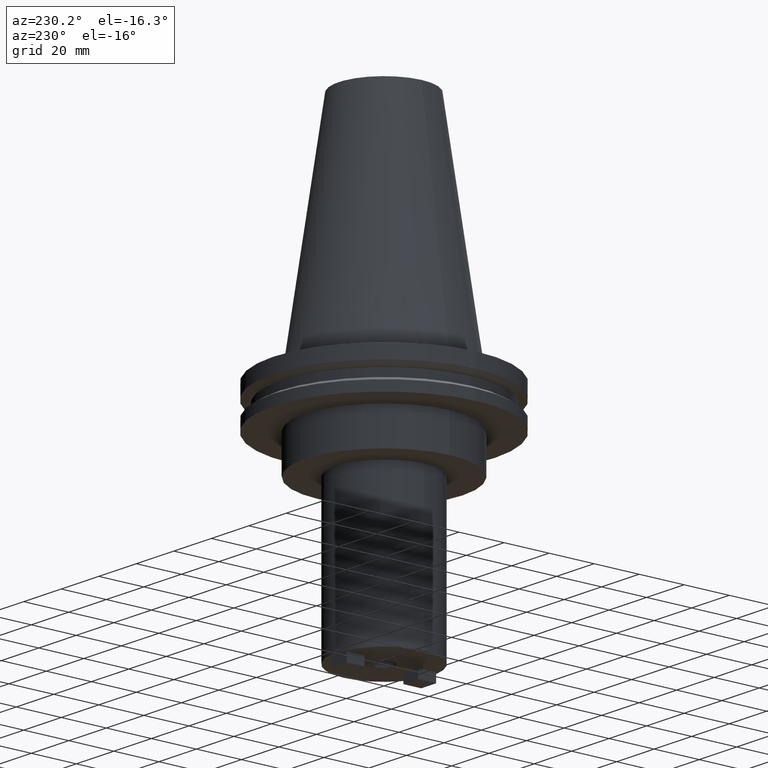
[diagram: clean part render]
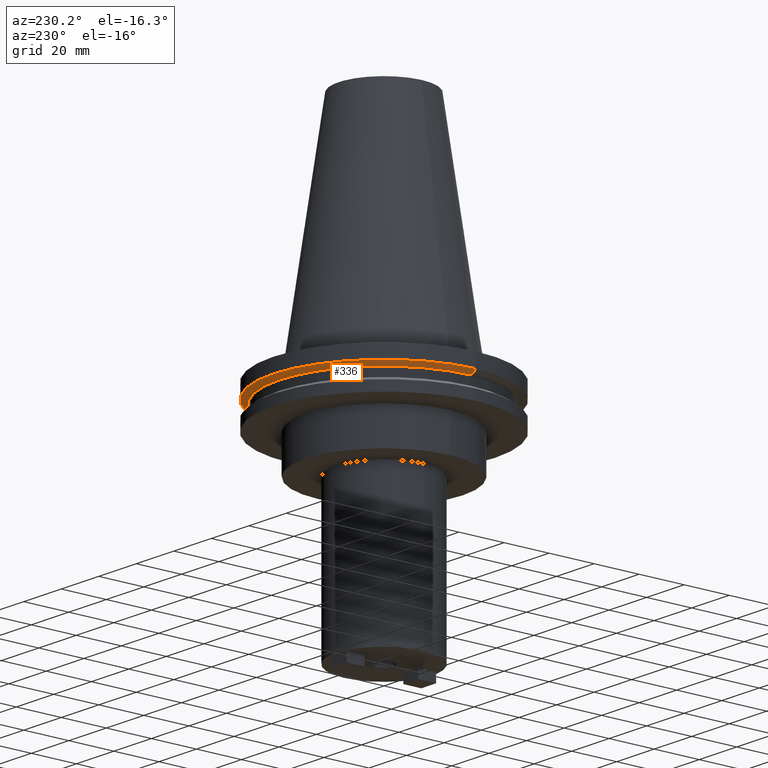
[diagram: same view with one face highlighted and labeled with its STEP entity id]
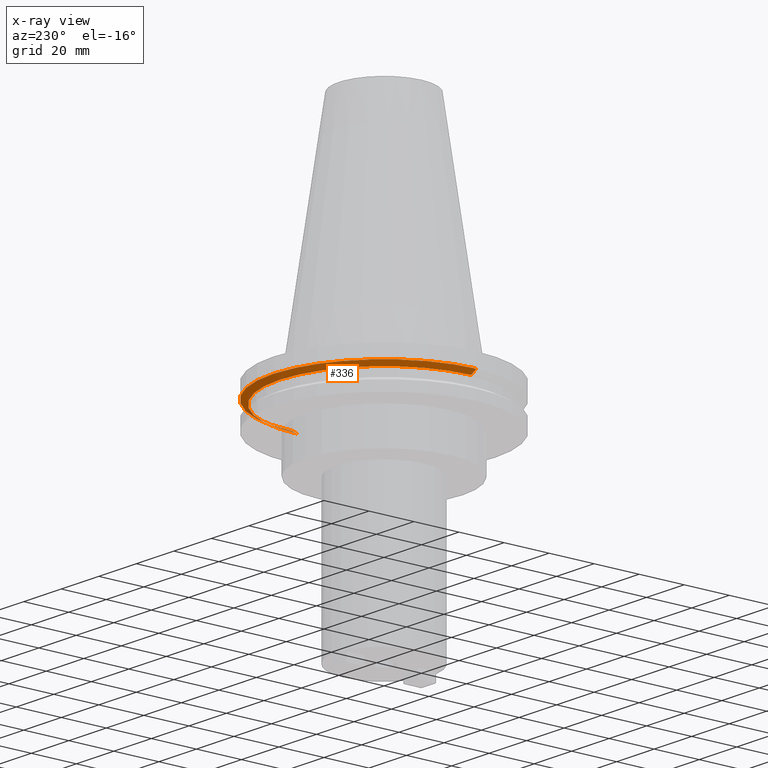
[diagram: x-ray of the same camera — body ghosted, the highlighted face saturated]
A machine part, auxiliary view. The second image highlights one B-rep face of the part: STEP entity #336.
The next image is the same camera in x-ray: the body ghosted, the highlighted face saturated — about 3% of this face is hidden behind the body in this view.
In plain terms, the highlighted conical surface has half-angle 60 deg.
Its self-contained STEP definition (entity closure, byte-faithful):
#2 = DIRECTION ( 'NONE',  ( 0.8660254037844273833, 0.000000000000000000, 0.5000000000000195399 ) ) ;
#8 = VERTEX_POINT ( 'NONE', #622 ) ;
#15 = CIRCLE ( 'NONE', #816, 46.43919780457007818 ) ;
#18 = EDGE_LOOP ( 'NONE', ( #851, #363, #1048, #860 ) ) ;
#89 = EDGE_CURVE ( 'NONE', #595, #912, #481, .T. ) ;
#108 = DIRECTION ( 'NONE',  ( -0.000000000000000000, -0.000000000000000000, 1.000000000000000000 ) ) ;
#110 = CARTESIAN_POINT ( 'NONE',  ( -46.43919780457007818, 5.857130358318727293E-15, -9.204999999999991189 ) ) ;
#150 = EDGE_CURVE ( 'NONE', #233, #8, #753, .T. ) ;
#155 = DIRECTION ( 'NONE',  ( -0.8660254037844273833, 1.060575238724893110E-16, 0.5000000000000195399 ) ) ;
#177 = CARTESIAN_POINT ( 'NONE',  ( 46.43919780457007818, 0.000000000000000000, -9.204999999999991189 ) ) ;
#233 = VERTEX_POINT ( 'NONE', #177 ) ;
#269 = DIRECTION ( 'NONE',  ( 1.000000000000000000, 0.000000000000000000, 0.000000000000000000 ) ) ;
#272 = DIRECTION ( 'NONE',  ( 1.000000000000000000, 0.000000000000000000, 0.000000000000000000 ) ) ;
#293 = CARTESIAN_POINT ( 'NONE',  ( 0.000000000000000000, 0.000000000000000000, -9.204999999999991189 ) ) ;
#296 = VECTOR ( 'NONE', #2, 1000.000000000000000 ) ;
#326 = CARTESIAN_POINT ( 'NONE',  ( -49.21500000000000341, 6.027099222003699404E-15, -7.602389855251287187 ) ) ;
#336 = ADVANCED_FACE ( 'NONE', ( #712 ), #745, .T. ) ;
#356 = DIRECTION ( 'NONE',  ( -0.000000000000000000, -0.000000000000000000, 1.000000000000000000 ) ) ;
#363 = ORIENTED_EDGE ( 'NONE', *, *, #89, .T. ) ;
#407 = CIRCLE ( 'NONE', #915, 49.21500000000000341 ) ;
#481 = LINE ( 'NONE', #990, #619 ) ;
#508 = CARTESIAN_POINT ( 'NONE',  ( 0.000000000000000000, 0.000000000000000000, -9.204999999999991189 ) ) ;
#529 = CARTESIAN_POINT ( 'NONE',  ( 0.000000000000000000, 0.000000000000000000, -7.602389855251287187 ) ) ;
#595 = VERTEX_POINT ( 'NONE', #110 ) ;
#619 = VECTOR ( 'NONE', #155, 1000.000000000000000 ) ;
#622 = CARTESIAN_POINT ( 'NONE',  ( 49.21500000000000341, 0.000000000000000000, -7.602389855251287187 ) ) ;
#669 = CARTESIAN_POINT ( 'NONE',  ( 46.43919780457007818, 0.000000000000000000, -9.204999999999991189 ) ) ;
#712 = FACE_OUTER_BOUND ( 'NONE', #18, .T. ) ;
#745 = CONICAL_SURFACE ( 'NONE', #813, 46.43919780457007818, 1.047197551196575205 ) ;
#753 = LINE ( 'NONE', #669, #296 ) ;
#783 = DIRECTION ( 'NONE',  ( -0.000000000000000000, -0.000000000000000000, 1.000000000000000000 ) ) ;
#813 = AXIS2_PLACEMENT_3D ( 'NONE', #293, #783, #272 ) ;
#816 = AXIS2_PLACEMENT_3D ( 'NONE', #508, #356, #269 ) ;
#851 = ORIENTED_EDGE ( 'NONE', *, *, #1046, .T. ) ;
#860 = ORIENTED_EDGE ( 'NONE', *, *, #150, .F. ) ;
#912 = VERTEX_POINT ( 'NONE', #326 ) ;
#915 = AXIS2_PLACEMENT_3D ( 'NONE', #529, #108, #928 ) ;
#928 = DIRECTION ( 'NONE',  ( 1.000000000000000000, 0.000000000000000000, 0.000000000000000000 ) ) ;
#990 = CARTESIAN_POINT ( 'NONE',  ( -46.43919780457007818, 5.687161494633754392E-15, -9.204999999999991189 ) ) ;
#1040 = EDGE_CURVE ( 'NONE', #8, #912, #407, .T. ) ;
#1046 = EDGE_CURVE ( 'NONE', #233, #595, #15, .T. ) ;
#1048 = ORIENTED_EDGE ( 'NONE', *, *, #1040, .F. ) ;